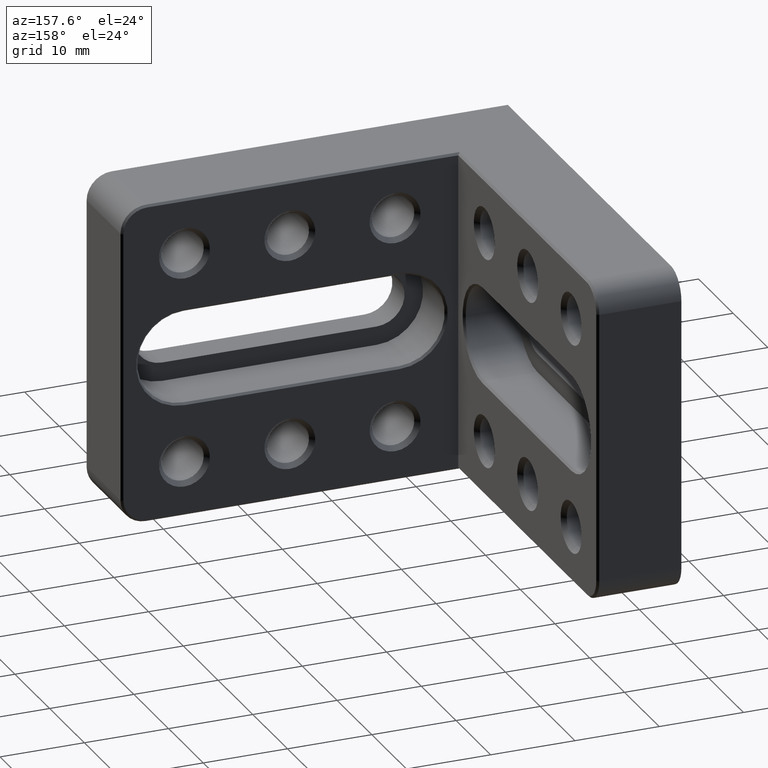
[diagram: clean part render]
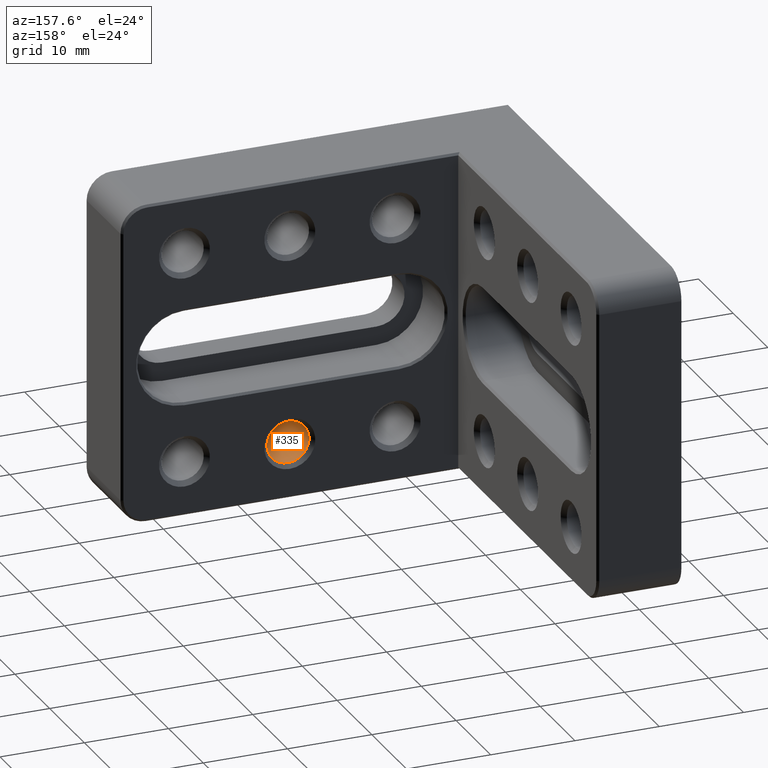
[diagram: same view with one face highlighted and labeled with its STEP entity id]
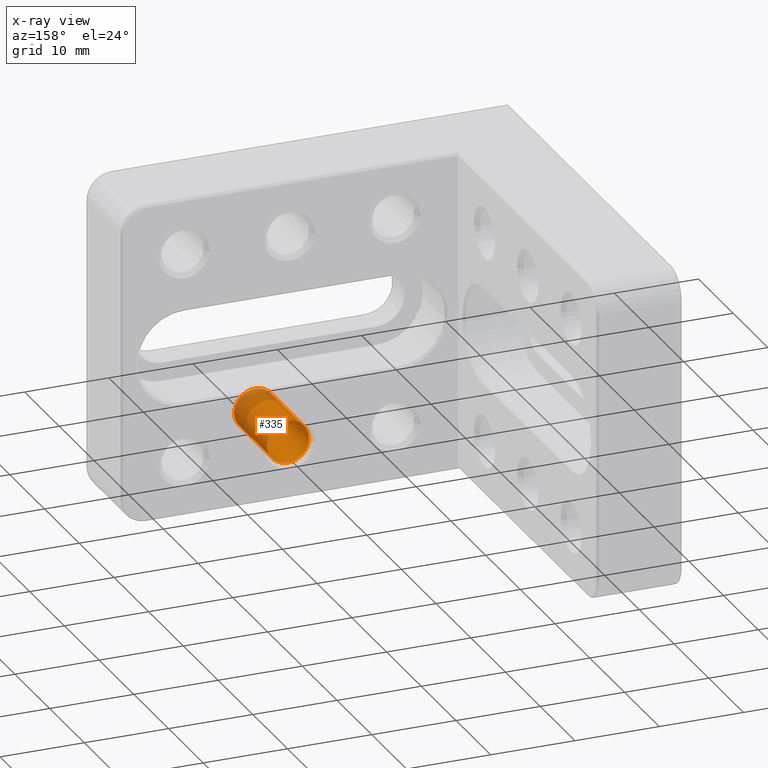
[diagram: x-ray of the same camera — body ghosted, the highlighted face saturated]
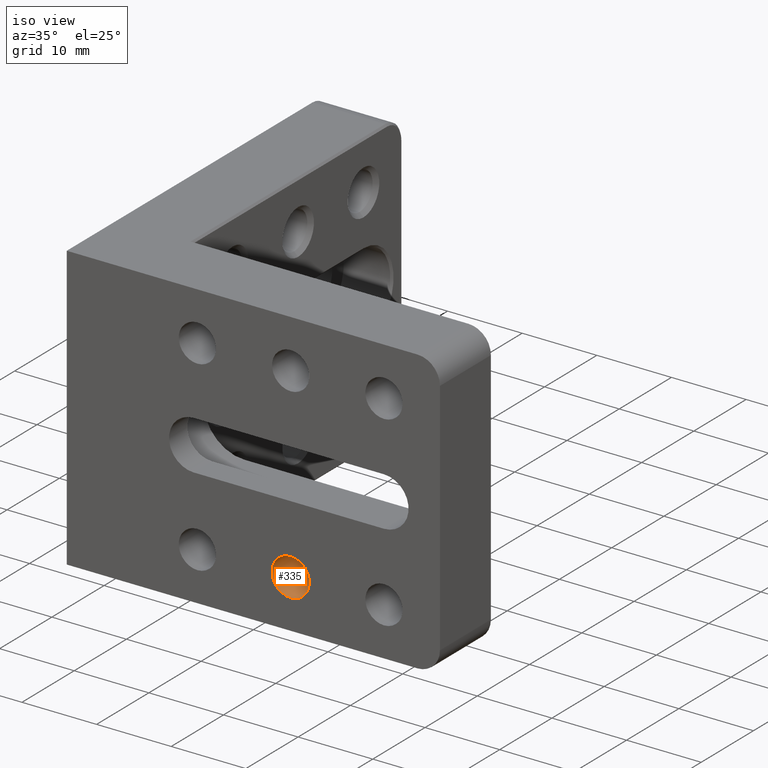
[diagram: same view with one face highlighted and labeled with its STEP entity id]
A machine part, auxiliary view. The second image highlights one B-rep face of the part: STEP entity #335.
The next image is the same camera in x-ray: the body ghosted, the highlighted face saturated — about 22% of this face is hidden behind the body in this view.
A second angle (iso view) of the same face is appended — the face is thin or edge-on in the first view.
In plain terms, the highlighted cylindrical surface (bore or boss wall) has radius 2.5 mm, axis along (-0, 1, -0).
Its self-contained STEP definition (entity closure, byte-faithful):
#8 = AXIS2_PLACEMENT_3D ( 'NONE', #658, #780, #2090 ) ;
#9 = EDGE_CURVE ( 'NONE', #1862, #1862, #339, .T. ) ;
#122 = EDGE_LOOP ( 'NONE', ( #1361 ) ) ;
#335 = ADVANCED_FACE ( 'NONE', ( #1847, #842 ), #1690, .F. ) ;
#339 = CIRCLE ( 'NONE', #909, 2.499999999999988454 ) ;
#394 = DIRECTION ( 'NONE',  ( 0.000000000000000000, 0.000000000000000000, 1.000000000000000000 ) ) ;
#428 = CARTESIAN_POINT ( 'NONE',  ( 4.999999999999997335, 9.474999999999974776, -10.00000000000001066 ) ) ;
#436 = VERTEX_POINT ( 'NONE', #1244 ) ;
#658 = CARTESIAN_POINT ( 'NONE',  ( 4.999999999999997335, -1.734723475976807094E-15, -12.49999999999999822 ) ) ;
#744 = EDGE_LOOP ( 'NONE', ( #1505 ) ) ;
#756 = EDGE_CURVE ( 'NONE', #436, #436, #814, .T. ) ;
#780 = DIRECTION ( 'NONE',  ( -0.000000000000000000, 1.000000000000000000, -0.000000000000000000 ) ) ;
#814 = CIRCLE ( 'NONE', #8, 2.499999999999998668 ) ;
#842 = FACE_OUTER_BOUND ( 'NONE', #122, .T. ) ;
#909 = AXIS2_PLACEMENT_3D ( 'NONE', #1651, #1019, #1672 ) ;
#1019 = DIRECTION ( 'NONE',  ( -0.000000000000000000, 1.000000000000000000, -0.000000000000000000 ) ) ;
#1244 = CARTESIAN_POINT ( 'NONE',  ( 4.999999999999997335, -1.734723475976807094E-15, -10.00000000000000000 ) ) ;
#1361 = ORIENTED_EDGE ( 'NONE', *, *, #9, .T. ) ;
#1505 = ORIENTED_EDGE ( 'NONE', *, *, #756, .F. ) ;
#1649 = AXIS2_PLACEMENT_3D ( 'NONE', #1680, #1823, #394 ) ;
#1651 = CARTESIAN_POINT ( 'NONE',  ( 4.999999999999997335, 9.474999999999974776, -12.49999999999999822 ) ) ;
#1672 = DIRECTION ( 'NONE',  ( 0.000000000000000000, 0.000000000000000000, 1.000000000000000000 ) ) ;
#1680 = CARTESIAN_POINT ( 'NONE',  ( 4.999999999999997335, 10.00000000000000000, -12.49999999999999822 ) ) ;
#1690 = CYLINDRICAL_SURFACE ( 'NONE', #1649, 2.499999999999993339 ) ;
#1823 = DIRECTION ( 'NONE',  ( -0.000000000000000000, 1.000000000000000000, -0.000000000000000000 ) ) ;
#1847 = FACE_OUTER_BOUND ( 'NONE', #744, .T. ) ;
#1862 = VERTEX_POINT ( 'NONE', #428 ) ;
#2090 = DIRECTION ( 'NONE',  ( 0.000000000000000000, 0.000000000000000000, 1.000000000000000000 ) ) ;